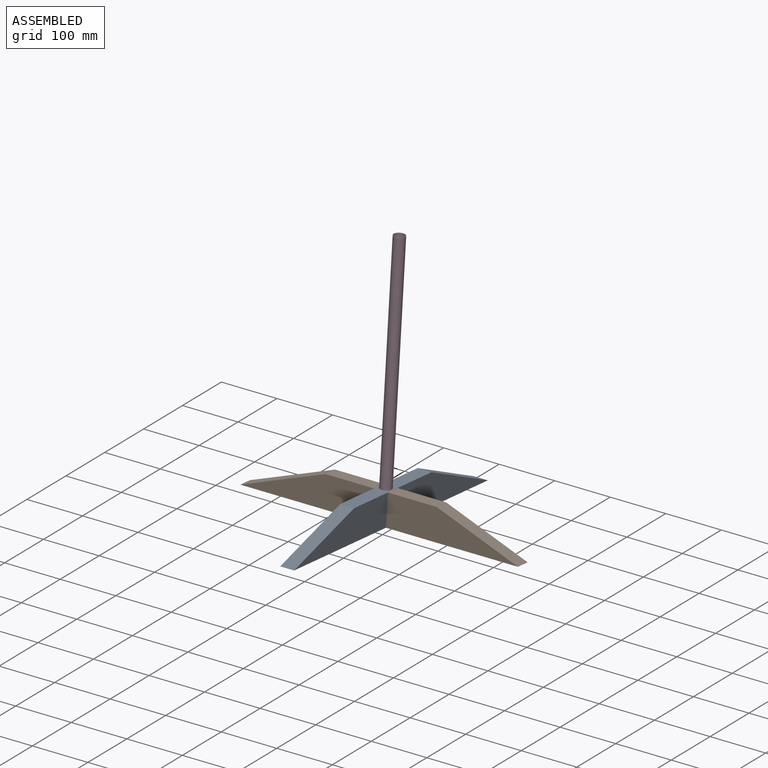
[diagram: assembled view]
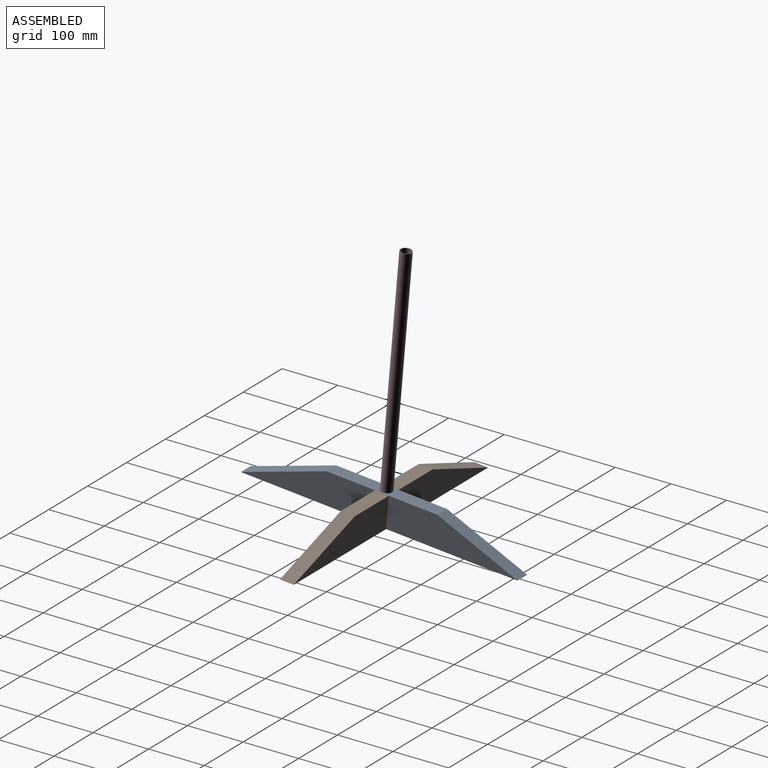
[diagram: assembled view, second angle]
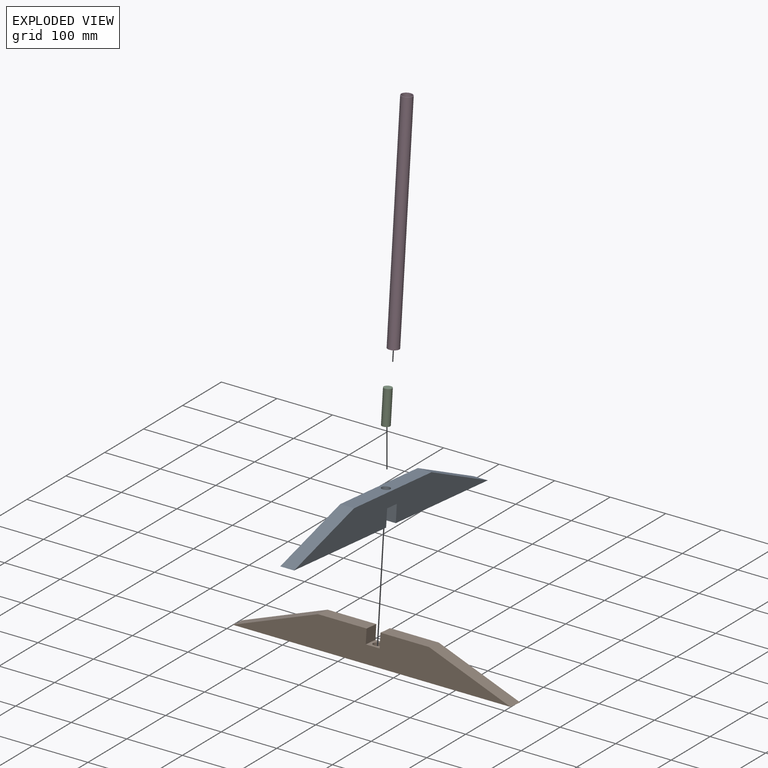
[diagram: exploded view]
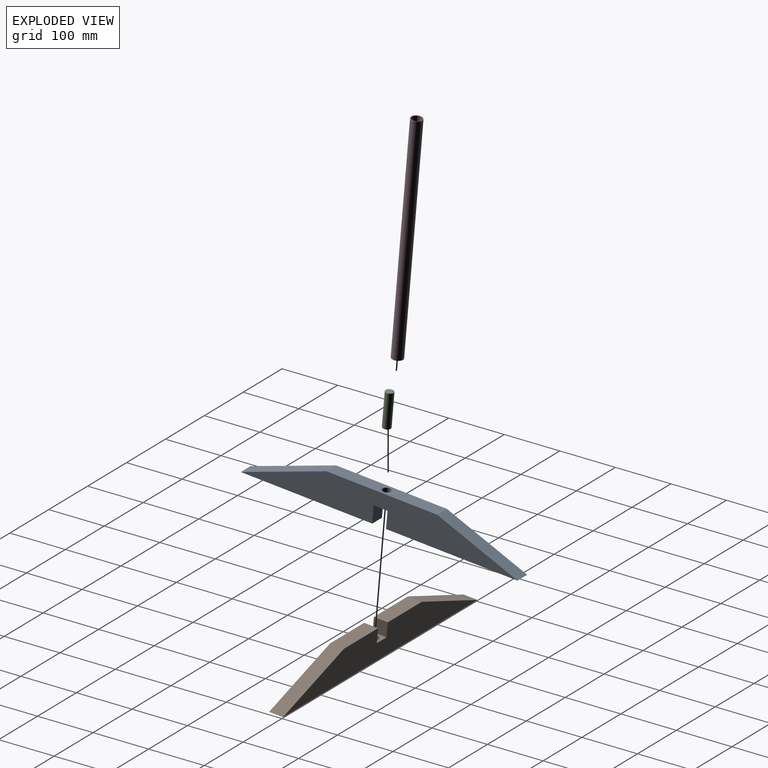
[diagram: exploded view, second angle]
ASSEMBLY  parts=4 mates=3
PART A: 11 faces, bbox 500x25x55.7 mm
  f0: plane 237.5x25mm, normal (0,0,-1), area 5937.5mm2, adj f1,f4,f6,f7
  f1: plane 500x55.68mm, normal (0,-1,0), area 18724.7mm2, adj f0,f2,f3,f4,f5,f7,f8,f9
  f2: plane 150x55.68mm, normal (0.35,0,0.94), area 4000mm2, adj f1,f3,f5,f6
  f3: plane 200x25mm, normal (0,0,1), area 4823.3mm2, adj f1,f2,f4,f6,f10
  f4: plane 150x55.68mm, normal (-0.35,0,0.94), area 4000mm2, adj f0,f1,f3,f6
  f5: plane 237.5x25mm, normal (0,0,-1), area 5937.5mm2, adj f1,f2,f6,f8
  f6: plane 500x55.68mm, normal (0,1,0), area 18724.7mm2, adj f0,f2,f3,f4,f5,f7,f8,f9
  f7: plane 30.5x25mm, normal (1,0,0), area 762.5mm2, adj f0,f1,f6,f9
  f8: plane 30.5x25mm, normal (-1,0,0), area 762.5mm2, adj f1,f5,f6,f9
  f9: plane 25x25mm, normal (0,0,-1), area 448.3mm2, adj f1,f6,f7,f8,f10
  f10: cylinder r=7.5mm len=25.18mm, axis (0,0,-1), area 1186.5mm2, adj f3,f9
PART B: 12 faces, bbox 500x25x55.7 mm
  f0: plane 87.5x25mm, normal (0,0,1), area 2187.5mm2, adj f1,f4,f6,f7
  f1: plane 500x55.68mm, normal (0,-1,0), area 18862.2mm2, adj f0,f2,f3,f4,f5,f7,f8,f9
  f2: plane 150x55.68mm, normal (0.35,0,0.94), area 4000mm2, adj f1,f3,f5,f6
  f3: plane 87.5x25mm, normal (0,0,1), area 2187.5mm2, adj f1,f2,f6,f8
  f4: plane 150x55.68mm, normal (-0.35,0,0.94), area 4000mm2, adj f0,f1,f5,f6
  f5: plane 500x25mm, normal (0,0,-1), area 12500mm2, adj f1,f2,f4,f6
  f6: plane 500x55.68mm, normal (0,1,0), area 18862.2mm2, adj f0,f2,f3,f4,f5,f7,f8,f9
  f7: plane 25x25mm, normal (1,0,0), area 625mm2, adj f0,f1,f6,f9
  f8: plane 25x25mm, normal (-1,0,0), area 625mm2, adj f1,f3,f6,f9
  f9: plane 25x25mm, normal (0,0,1), area 448.3mm2, adj f1,f6,f7,f8,f10
  f10: cylinder r=7.5mm len=15mm, axis (0,0,1), area 706.9mm2, adj f9,f11
  f11: plane 15x15mm, normal (0,0,1), area 176.7mm2, adj f10
PART C: 3 faces, bbox 14.5x14.5x60 mm
  f0: cylinder r=7.25mm len=60mm, axis (0,0,-1), area 2733.2mm2, adj f1,f2
  f1: plane 14.5x14.5mm, normal (0,0,1), area 165.1mm2, adj f0
  f2: plane 14.5x14.5mm, normal (0,0,-1), area 165.1mm2, adj f0
PART D: 4 faces, bbox 20x20x400 mm
  f0: cylinder r=10mm len=400mm, axis (0,0,-1), area 25132.7mm2, adj f1,f2
  f1: plane 20x20mm, normal (0,0,1), area 59.7mm2, adj f0,f3
  f2: plane 20x20mm, normal (0,0,-1), area 59.7mm2, adj f0,f3
  f3: cylinder r=9mm len=400mm, axis (0,0,-1), area 22619.5mm2, adj f1,f2
PLACE A rot(axis=(-0.04,-0.04,-1),90.1deg) t=(-319.46,-227.68,39.62)mm
PLACE B rot(axis=(-1,0,0),5deg) t=(-81.96,33.81,16.57)mm
PLACE C rot(axis=(-1,0,0),5deg) t=(-331.96,26.22,73.3)mm
PLACE D rot(axis=(-1,0,0),5deg) t=(-331.96,26.22,73.3)mm
MATE revolute A.f10 <-> B.f10  axis (0,-0.09,-1) through (-331.96,24.03,48.22)mm
MATE fastened D.f3 <-> A.f10  axis (0,-0.09,-1) through (-331.96,26.22,73.3)mm
MATE fastened C.f0 <-> A.f10  axis (0,-0.09,-1) through (-331.96,26.22,73.3)mm
